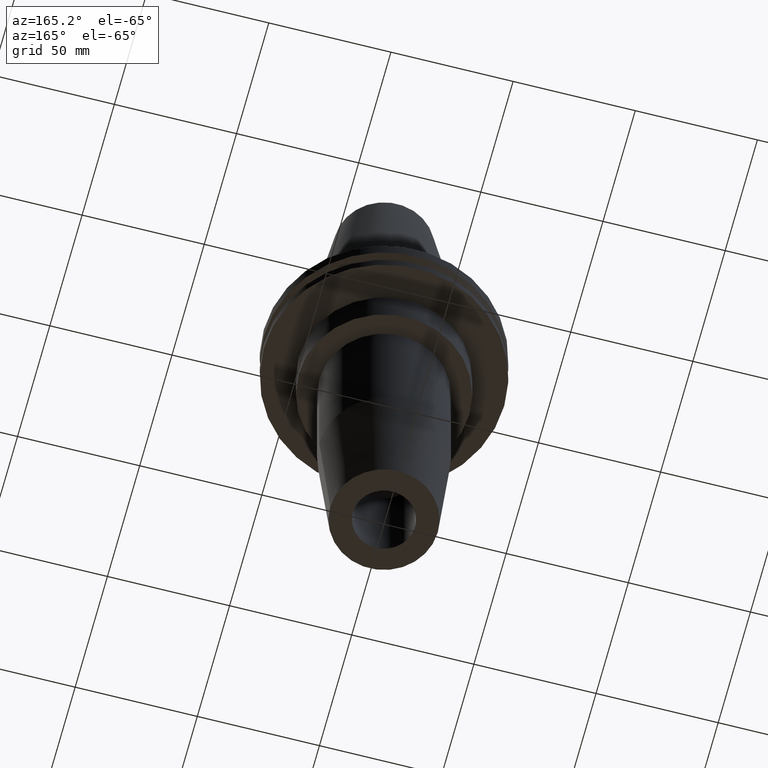
[diagram: clean part render]
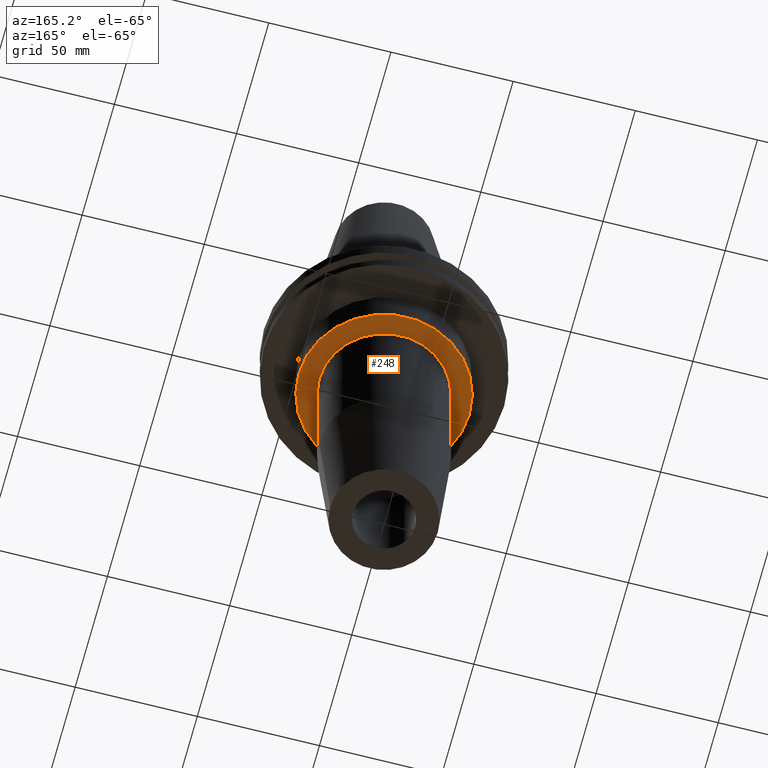
[diagram: same view with one face highlighted and labeled with its STEP entity id]
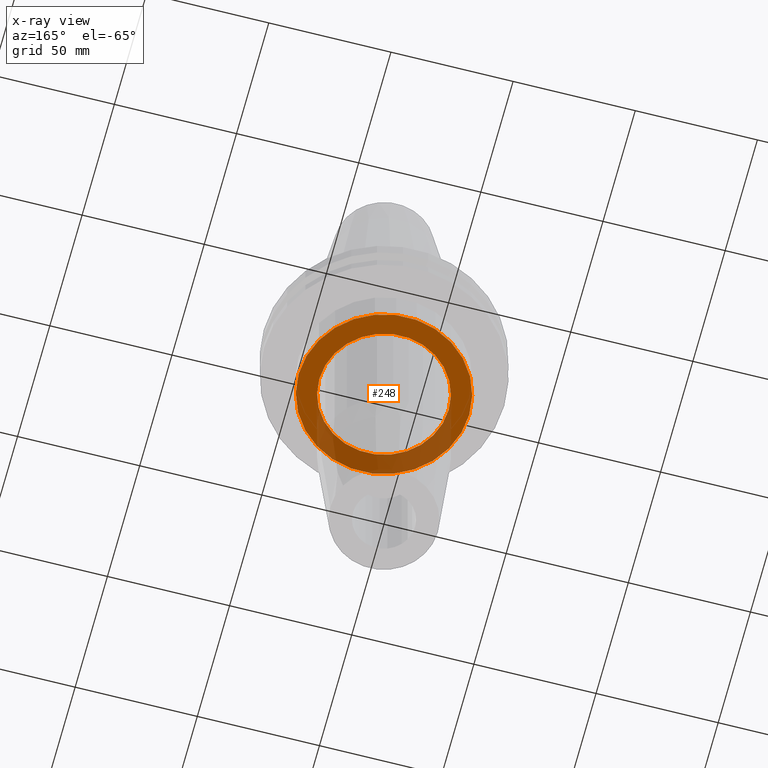
[diagram: x-ray of the same camera — body ghosted, the highlighted face saturated]
A machine part, auxiliary view. The second image highlights one B-rep face of the part: STEP entity #248.
The next image is the same camera in x-ray: the body ghosted, the highlighted face saturated — about 34% of this face is hidden behind the body in this view.
In plain terms, the highlighted planar face has unit normal (0, -0, 1).
Its self-contained STEP definition (entity closure, byte-faithful):
#21 = AXIS2_PLACEMENT_3D ( 'NONE', #26, #434, #298 ) ;
#26 = CARTESIAN_POINT ( 'NONE',  ( 0.000000000000000000, 0.000000000000000000, -35.04999999999999716 ) ) ;
#47 = FACE_BOUND ( 'NONE', #488, .T. ) ;
#49 = AXIS2_PLACEMENT_3D ( 'NONE', #436, #816, #229 ) ;
#114 = ORIENTED_EDGE ( 'NONE', *, *, #212, .T. ) ;
#122 = DIRECTION ( 'NONE',  ( 0.000000000000000000, -0.000000000000000000, 1.000000000000000000 ) ) ;
#133 = EDGE_CURVE ( 'NONE', #775, #197, #424, .T. ) ;
#197 = VERTEX_POINT ( 'NONE', #682 ) ;
#212 = EDGE_CURVE ( 'NONE', #771, #446, #390, .T. ) ;
#218 = CARTESIAN_POINT ( 'NONE',  ( -34.92499999999999716, 4.277078946022130887E-15, -35.04999999999999716 ) ) ;
#225 = CARTESIAN_POINT ( 'NONE',  ( 0.000000000000000000, 0.000000000000000000, -35.04999999999999716 ) ) ;
#229 = DIRECTION ( 'NONE',  ( 1.000000000000000000, 0.000000000000000000, 0.000000000000000000 ) ) ;
#248 = ADVANCED_FACE ( 'NONE', ( #47, #519 ), #389, .F. ) ;
#267 = ORIENTED_EDGE ( 'NONE', *, *, #624, .T. ) ;
#298 = DIRECTION ( 'NONE',  ( 1.000000000000000000, 0.000000000000000000, 0.000000000000000000 ) ) ;
#319 = DIRECTION ( 'NONE',  ( 1.000000000000000000, 0.000000000000000000, 0.000000000000000000 ) ) ;
#365 = CARTESIAN_POINT ( 'NONE',  ( 0.000000000000000000, 0.000000000000000000, -35.04999999999999716 ) ) ;
#389 = PLANE ( 'NONE',  #851 ) ;
#390 = CIRCLE ( 'NONE', #774, 26.50000000000000000 ) ;
#403 = CARTESIAN_POINT ( 'NONE',  ( -26.50000000000000000, 3.245314017740485765E-15, -35.04999999999999716 ) ) ;
#424 = CIRCLE ( 'NONE', #49, 34.92499999999999716 ) ;
#434 = DIRECTION ( 'NONE',  ( -0.000000000000000000, -0.000000000000000000, 1.000000000000000000 ) ) ;
#436 = CARTESIAN_POINT ( 'NONE',  ( 0.000000000000000000, 0.000000000000000000, -35.04999999999999716 ) ) ;
#446 = VERTEX_POINT ( 'NONE', #403 ) ;
#479 = DIRECTION ( 'NONE',  ( 1.000000000000000000, 0.000000000000000000, 0.000000000000000000 ) ) ;
#482 = CARTESIAN_POINT ( 'NONE',  ( 26.50000000000000000, 0.000000000000000000, -35.04999999999999716 ) ) ;
#488 = EDGE_LOOP ( 'NONE', ( #114, #267 ) ) ;
#500 = DIRECTION ( 'NONE',  ( -0.000000000000000000, -0.000000000000000000, 1.000000000000000000 ) ) ;
#508 = CARTESIAN_POINT ( 'NONE',  ( 0.000000000000000000, 34.92499999999999716, -35.04999999999999716 ) ) ;
#519 = FACE_OUTER_BOUND ( 'NONE', #759, .T. ) ;
#520 = ORIENTED_EDGE ( 'NONE', *, *, #560, .F. ) ;
#560 = EDGE_CURVE ( 'NONE', #197, #775, #744, .T. ) ;
#624 = EDGE_CURVE ( 'NONE', #446, #771, #806, .T. ) ;
#625 = DIRECTION ( 'NONE',  ( 1.000000000000000000, 0.000000000000000000, 0.000000000000000000 ) ) ;
#653 = AXIS2_PLACEMENT_3D ( 'NONE', #365, #805, #479 ) ;
#682 = CARTESIAN_POINT ( 'NONE',  ( 34.92499999999999716, 0.000000000000000000, -35.04999999999999716 ) ) ;
#744 = CIRCLE ( 'NONE', #21, 34.92499999999999716 ) ;
#750 = ORIENTED_EDGE ( 'NONE', *, *, #133, .F. ) ;
#759 = EDGE_LOOP ( 'NONE', ( #520, #750 ) ) ;
#771 = VERTEX_POINT ( 'NONE', #482 ) ;
#774 = AXIS2_PLACEMENT_3D ( 'NONE', #225, #500, #625 ) ;
#775 = VERTEX_POINT ( 'NONE', #218 ) ;
#805 = DIRECTION ( 'NONE',  ( -0.000000000000000000, -0.000000000000000000, 1.000000000000000000 ) ) ;
#806 = CIRCLE ( 'NONE', #653, 26.50000000000000000 ) ;
#816 = DIRECTION ( 'NONE',  ( -0.000000000000000000, -0.000000000000000000, 1.000000000000000000 ) ) ;
#851 = AXIS2_PLACEMENT_3D ( 'NONE', #508, #122, #319 ) ;